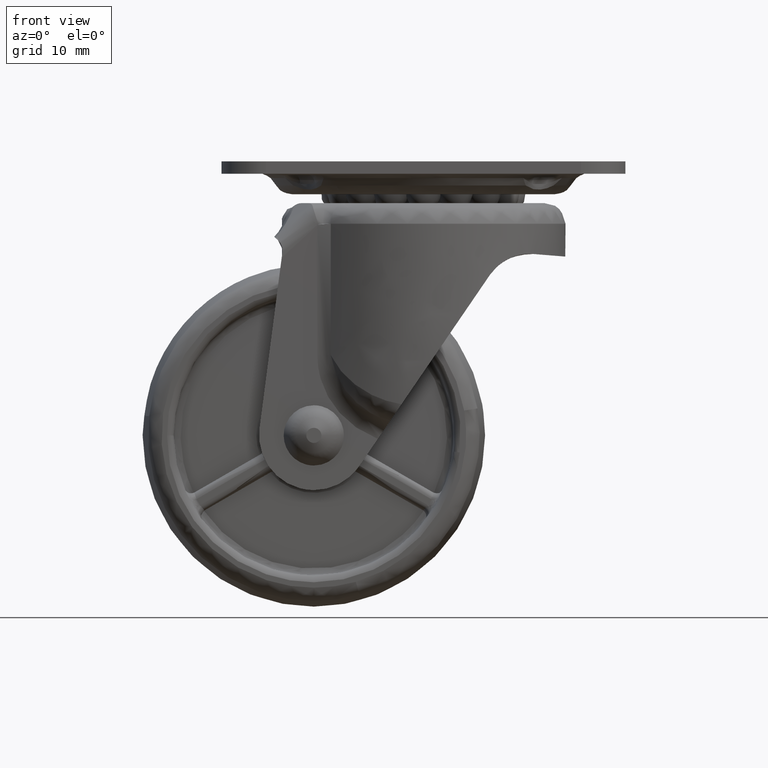
[diagram: clean part render]
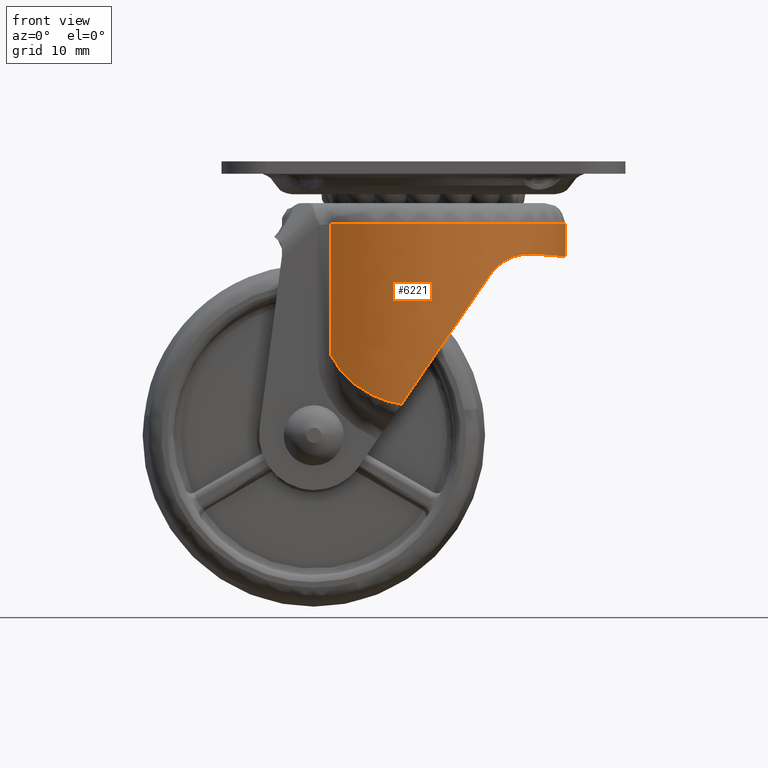
[diagram: same view with one face highlighted and labeled with its STEP entity id]
A machine part, front view. The second image highlights one B-rep face of the part: STEP entity #6221.
In plain terms, the highlighted face is a freeform B-spline surface patch.
Its self-contained STEP definition (entity closure, byte-faithful):
#2272=CARTESIAN_POINT('',(-13.536819851418221,-15.726315789473700,-9.099995000000000));
#2273=VERTEX_POINT('',#2272);
#2438=CARTESIAN_POINT('',(-13.536819851418221,15.726315789473700,-9.099995000000000));
#2439=VERTEX_POINT('',#2438);
#2473=CARTESIAN_POINT('',(-13.536819851418221,15.726315789473700,-9.099995000000000));
#2474=CARTESIAN_POINT('',(1.425380140302373,28.605403846727505,-9.099995000000000));
#2475=CARTESIAN_POINT('',(15.033137320313640,14.302701923363751,-9.099995000000000));
#2476=CARTESIAN_POINT('',(28.640894500324922,-6.938894E-015,-9.099995000000000));
#2477=CARTESIAN_POINT('',(15.033137320313640,-14.302701923363760,-9.099995000000000));
#2478=CARTESIAN_POINT('',(1.425380140302373,-28.605403846727505,-9.099995000000000));
#2479=CARTESIAN_POINT('',(-13.536819851418210,-15.726315789473700,-9.099995000000000));
#2487=(BOUNDED_CURVE()B_SPLINE_CURVE(2,(#2473,#2474,#2475,#2476,#2477,#2478,#2479),.UNSPECIFIED.,.F.,.U.)B_SPLINE_CURVE_WITH_KNOTS((3,2,2,3),(0.0,0.333333333333333,0.666666666666667,1.0),.UNSPECIFIED.)CURVE()GEOMETRIC_REPRESENTATION_ITEM()RATIONAL_B_SPLINE_CURVE((1.0,0.724488545557284,1.0,0.724488545557284,1.0,0.724488545557284,1.0))REPRESENTATION_ITEM(''));
#2488=EDGE_CURVE('',#2439,#2273,#2487,.T.);
#4585=CARTESIAN_POINT('',(-13.536819851418301,-15.726315789473650,-28.281603139059850));
#4586=VERTEX_POINT('',#4585);
#4600=CARTESIAN_POINT('',(-13.536819851418221,-15.726315789473700,-9.099995000000000));
#4601=CARTESIAN_POINT('',(-13.536819851418301,-15.726315789473650,-28.281603139059850));
#4602=QUASI_UNIFORM_CURVE('',1,(#4600,#4601),.UNSPECIFIED.,.F.,.U.);
#4603=EDGE_CURVE('',#2273,#4586,#4602,.T.);
#4860=CARTESIAN_POINT('',(-13.536819851410900,15.726315789479999,-28.281603139075049));
#4861=VERTEX_POINT('',#4860);
#4862=CARTESIAN_POINT('',(-13.536819851410900,15.726315789479999,-28.281603139075049));
#4863=CARTESIAN_POINT('',(-13.536819851418221,15.726315789473700,-9.099995000000000));
#4864=QUASI_UNIFORM_CURVE('',1,(#4862,#4863),.UNSPECIFIED.,.F.,.U.);
#4865=EDGE_CURVE('',#4861,#2439,#4864,.T.);
#5180=CARTESIAN_POINT('',(-3.206759390951151,20.500712041501050,-35.461347251662097));
#5181=VERTEX_POINT('',#5180);
#5209=CARTESIAN_POINT('',(-3.206759390951130,20.500712041501050,-35.461347251662097));
#5210=CARTESIAN_POINT('',(-3.492089954716481,20.456080105643029,-35.414903710843461));
#5211=CARTESIAN_POINT('',(-3.774726366782582,20.405770154518130,-35.361052037543907));
#5212=CARTESIAN_POINT('',(-4.194732096272557,20.322084079303419,-35.269323581220704));
#5213=CARTESIAN_POINT('',(-4.334075442403953,20.292817997393328,-35.236920814057108));
#5214=CARTESIAN_POINT('',(-4.611455579416584,20.231587917285371,-35.168471677936417));
#5215=CARTESIAN_POINT('',(-4.749638305119006,20.199587544063139,-35.132383742800087));
#5216=CARTESIAN_POINT('',(-5.435152964068215,20.033472687798501,-34.943437019937072));
#5217=CARTESIAN_POINT('',(-5.966265421165112,19.881149563466170,-34.765290711490273));
#5218=CARTESIAN_POINT('',(-6.996321945795561,19.542464283489970,-34.357088029015053));
#5219=CARTESIAN_POINT('',(-7.495258184683345,19.356078539276400,-34.127031620077823));
#5220=CARTESIAN_POINT('',(-8.099456526740335,19.104408907397520,-33.806461398963542));
#5221=CARTESIAN_POINT('',(-8.219436718064848,19.053087988800382,-33.740622464139520));
#5222=CARTESIAN_POINT('',(-8.456829331041437,18.948913940827300,-33.605938955808632));
#5223=CARTESIAN_POINT('',(-8.574182002396178,18.896090337159119,-33.537133662245999));
#5224=CARTESIAN_POINT('',(-8.922276511847709,18.735548831227302,-33.326325021009701));
#5225=CARTESIAN_POINT('',(-9.149058890763113,18.625759746194799,-33.179935321530692));
#5226=CARTESIAN_POINT('',(-9.592321878181490,18.401401188360168,-32.875293165864520));
#5227=CARTESIAN_POINT('',(-9.808802467537094,18.286830556551170,-32.717041538803919));
#5228=CARTESIAN_POINT('',(-10.125894397435180,18.111966543276971,-32.470485409699243));
#5229=CARTESIAN_POINT('',(-10.230348625788050,18.053157665363319,-32.386737582834932));
#5230=CARTESIAN_POINT('',(-10.435817027290691,17.935168180659470,-32.216878401479072));
#5231=CARTESIAN_POINT('',(-10.536947990821391,17.875924316332679,-32.130678753212649));
#5232=CARTESIAN_POINT('',(-11.034712793613149,17.578757167528519,-31.693263225525619));
#5233=CARTESIAN_POINT('',(-11.407797842806540,17.337924513956519,-31.322942393213729));
#5234=CARTESIAN_POINT('',(-12.105006851961150,16.858537516284429,-30.537581326240758));
#5235=CARTESIAN_POINT('',(-12.429163023810400,16.619908353952180,-30.122614515681519));
#5236=CARTESIAN_POINT('',(-12.802417964111781,16.330019242795672,-29.570585136858330));
#5237=CARTESIAN_POINT('',(-12.875461643192130,16.272471673752769,-29.458497868734899));
#5238=CARTESIAN_POINT('',(-13.018253658997160,16.158462753876218,-29.230753609450598));
#5239=CARTESIAN_POINT('',(-13.088106098742090,16.101914128107190,-29.114904793748110));
#5240=CARTESIAN_POINT('',(-13.291150638674250,15.935446465773611,-28.764151614121179));
#5241=CARTESIAN_POINT('',(-13.418219491944800,15.828404016748021,-28.525503038413749));
#5242=CARTESIAN_POINT('',(-13.536819851410881,15.726315789480010,-28.281603139075049));
#5243=B_SPLINE_CURVE_WITH_KNOTS('',3,(#5209,#5210,#5211,#5212,#5213,#5214,#5215,#5216,#5217,#5218,#5219,#5220,#5221,#5222,#5223,#5224,#5225,#5226,#5227,#5228,#5229,#5230,#5231,#5232,#5233,#5234,#5235,#5236,#5237,#5238,#5239,#5240,#5241,#5242),.UNSPECIFIED.,.F.,.U.,(4,2,2,2,2,2,2,2,2,2,2,2,2,2,2,2,4),(0.0,0.062500000000000,0.093750000000000,0.125000000000000,0.250000000000001,0.375000000000002,0.406250000000002,0.437500000000003,0.500000000000003,0.562500000000003,0.593750000000003,0.625000000000003,0.750000000000003,0.875000000000002,0.906250000000001,0.937500000000001,1.0),.UNSPECIFIED.);
#5244=EDGE_CURVE('',#5181,#4861,#5243,.T.);
#5329=CARTESIAN_POINT('',(-3.206759390951140,-20.500712041501050,-35.461347251662097));
#5330=VERTEX_POINT('',#5329);
#5331=CARTESIAN_POINT('',(-13.536819851418279,-15.726315789473640,-28.281603139059840));
#5332=CARTESIAN_POINT('',(-13.300257100085091,-15.929943097434530,-28.768090966731009));
#5333=CARTESIAN_POINT('',(-13.031376501705720,-16.152086066443651,-29.231406982724231));
#5334=CARTESIAN_POINT('',(-12.656611770752720,-16.443287029929088,-29.786361749585360));
#5335=CARTESIAN_POINT('',(-12.579588082465561,-16.502307021498609,-29.896294878620331));
#5336=CARTESIAN_POINT('',(-12.422587321116840,-16.620815190764230,-30.112519079262700));
#5337=CARTESIAN_POINT('',(-12.342548204782990,-16.680354374114920,-30.218915312536492));
#5338=CARTESIAN_POINT('',(-12.097896234568140,-16.859545653172528,-30.533216774759051));
#5339=CARTESIAN_POINT('',(-11.928755828672680,-16.979764652835019,-30.736246155196291));
#5340=CARTESIAN_POINT('',(-11.403583414587940,-17.340740423914049,-31.327427859009969));
#5341=CARTESIAN_POINT('',(-11.029888559731830,-17.581761770332999,-31.697796312422600));
#5342=CARTESIAN_POINT('',(-10.433601985541319,-17.937558968670182,-32.221345854685083));
#5343=CARTESIAN_POINT('',(-10.228859311666060,-18.055218872170101,-32.390494894815660));
#5344=CARTESIAN_POINT('',(-9.912525885371837,-18.229614049858380,-32.636355272826009));
#5345=CARTESIAN_POINT('',(-9.805543463467112,-18.287397101554440,-32.716996549346092));
#5346=CARTESIAN_POINT('',(-9.588444269069607,-18.402155087457292,-32.875666852485139));
#5347=CARTESIAN_POINT('',(-9.478437369398547,-18.459068079918438,-32.953608279078722));
#5348=CARTESIAN_POINT('',(-8.923534894061733,-18.739811485424820,-33.334746240353603));
#5349=CARTESIAN_POINT('',(-8.461904350230114,-18.953332785671279,-33.613988347665043));
#5350=CARTESIAN_POINT('',(-7.502378812601484,-19.353215781080760,-34.123421071153679));
#5351=CARTESIAN_POINT('',(-7.004489013838262,-19.539605583314049,-34.353599736066563));
#5352=CARTESIAN_POINT('',(-6.357902964071161,-19.752420217355230,-34.610149213955872));
#5353=CARTESIAN_POINT('',(-6.227370190328540,-19.793972967415829,-34.659893145314101));
#5354=CARTESIAN_POINT('',(-5.963815871148362,-19.874969322673689,-34.756206861645033));
#5355=CARTESIAN_POINT('',(-5.830616495192141,-19.914462033192351,-34.802833830780173));
#5356=CARTESIAN_POINT('',(-5.428957524288258,-20.029140454381409,-34.937292373772998));
#5357=CARTESIAN_POINT('',(-5.158267879635036,-20.100598157309740,-35.019794981879102));
#5358=CARTESIAN_POINT('',(-4.337336889648824,-20.299436048929142,-35.245943283115729));
#5359=CARTESIAN_POINT('',(-3.778264847909741,-20.411316098210310,-35.368322737680643));
#5360=CARTESIAN_POINT('',(-3.206759390951136,-20.500712041501050,-35.461347251662097));
#5361=B_SPLINE_CURVE_WITH_KNOTS('',3,(#5331,#5332,#5333,#5334,#5335,#5336,#5337,#5338,#5339,#5340,#5341,#5342,#5343,#5344,#5345,#5346,#5347,#5348,#5349,#5350,#5351,#5352,#5353,#5354,#5355,#5356,#5357,#5358,#5359,#5360),.UNSPECIFIED.,.F.,.U.,(4,2,2,2,2,2,2,2,2,2,2,2,2,2,4),(0.0,0.124999999999998,0.156249999999998,0.187499999999998,0.249999999999997,0.374999999999996,0.437499999999995,0.468749999999995,0.499999999999995,0.624999999999995,0.749999999999996,0.781249999999997,0.812499999999997,0.874999999999998,1.0),.UNSPECIFIED.);
#5362=EDGE_CURVE('',#4586,#5330,#5361,.T.);
#5574=CARTESIAN_POINT('',(9.734072073091880,18.325128672832101,-16.530855647014100));
#5575=VERTEX_POINT('',#5574);
#5576=CARTESIAN_POINT('',(-3.206759390951151,20.500712041501050,-35.461347251662097));
#5577=CARTESIAN_POINT('',(3.626222317645904,21.569539710407582,-25.465721914239129));
#5578=CARTESIAN_POINT('',(9.734072073091880,18.325128672832101,-16.530855647014100));
#5586=(BOUNDED_CURVE()B_SPLINE_CURVE(2,(#5576,#5577,#5578),.UNSPECIFIED.,.F.,.U.)CURVE()GEOMETRIC_REPRESENTATION_ITEM()QUASI_UNIFORM_CURVE()RATIONAL_B_SPLINE_CURVE((1.0,0.948691474317042,1.0))REPRESENTATION_ITEM(''));
#5587=EDGE_CURVE('',#5181,#5575,#5586,.T.);
#5626=CARTESIAN_POINT('',(9.734072073091880,-18.325128672832101,-16.530855647014100));
#5627=VERTEX_POINT('',#5626);
#5633=CARTESIAN_POINT('',(9.734072073091880,-18.325128672832101,-16.530855647014100));
#5634=CARTESIAN_POINT('',(3.626222317645991,-21.569539710407568,-25.465721914239005));
#5635=CARTESIAN_POINT('',(-3.206759390951131,-20.500712041501060,-35.461347251662097));
#5643=(BOUNDED_CURVE()B_SPLINE_CURVE(2,(#5633,#5634,#5635),.UNSPECIFIED.,.F.,.U.)CURVE()GEOMETRIC_REPRESENTATION_ITEM()QUASI_UNIFORM_CURVE()RATIONAL_B_SPLINE_CURVE((1.0,0.948691474317038,1.0))REPRESENTATION_ITEM(''));
#5644=EDGE_CURVE('',#5627,#5330,#5643,.T.);
#5774=CARTESIAN_POINT('',(16.033527717364048,13.171502927604401,-13.520357887976999));
#5775=VERTEX_POINT('',#5774);
#5776=CARTESIAN_POINT('',(16.033527717364048,-13.171502927604401,-13.520357887976999));
#5777=VERTEX_POINT('',#5776);
#5778=CARTESIAN_POINT('',(16.033527717364048,13.171502927604401,-13.520357887976999));
#5779=CARTESIAN_POINT('',(26.853884432326222,5.204170E-015,-14.391318596259799));
#5780=CARTESIAN_POINT('',(16.033527717364048,-13.171502927604401,-13.520357887976999));
#5788=(BOUNDED_CURVE()B_SPLINE_CURVE(2,(#5778,#5779,#5780),.UNSPECIFIED.,.F.,.U.)CURVE()GEOMETRIC_REPRESENTATION_ITEM()QUASI_UNIFORM_CURVE()RATIONAL_B_SPLINE_CURVE((1.0,0.772700130302993,1.0))REPRESENTATION_ITEM(''));
#5789=EDGE_CURVE('',#5775,#5777,#5788,.T.);
#5866=CARTESIAN_POINT('',(16.033527717364048,13.171502927604401,-13.520357887976999));
#5867=CARTESIAN_POINT('',(15.987857882901510,13.227095985798019,-13.516867103886289));
#5868=CARTESIAN_POINT('',(15.941876158710460,13.282480312545051,-13.513802558687090));
#5869=CARTESIAN_POINT('',(15.578001736977541,13.716145755447650,-13.493201533891799));
#5870=CARTESIAN_POINT('',(15.248530415912629,14.081362364114860,-13.496162132248401));
#5871=CARTESIAN_POINT('',(14.567123214585910,14.785173772887021,-13.554014085429930));
#5872=CARTESIAN_POINT('',(14.215179644198150,15.123770059139771,-13.608809180799410));
#5873=CARTESIAN_POINT('',(13.761891361212390,15.530218749139131,-13.718573937372041));
#5874=CARTESIAN_POINT('',(13.670382727867990,15.610824954691360,-13.742659581283609));
#5875=CARTESIAN_POINT('',(13.487033137189369,15.769500812617220,-13.794993479529460));
#5876=CARTESIAN_POINT('',(13.395273760956840,15.847506699932790,-13.823209356555070));
#5877=CARTESIAN_POINT('',(13.119879856712901,16.077577667191608,-13.914221818293811));
#5878=CARTESIAN_POINT('',(12.936126478540890,16.225697721614878,-13.983373728836661));
#5879=CARTESIAN_POINT('',(12.385589422335331,16.654613773062781,-14.218301466583640));
#5880=CARTESIAN_POINT('',(12.019433671432161,16.920001486412680,-14.411281689329650));
#5881=CARTESIAN_POINT('',(11.612999641737879,17.196038191106940,-14.678127887334730));
#5882=CARTESIAN_POINT('',(11.567865974818231,17.226429914868589,-14.708512064890620));
#5883=CARTESIAN_POINT('',(11.478281580145991,17.286250672690670,-14.770358578678040));
#5884=CARTESIAN_POINT('',(11.344780336376481,17.374640755118449,-14.864838564688361));
#5885=CARTESIAN_POINT('',(11.213971354066810,17.459087126492339,-14.964467975061940));
#5886=CARTESIAN_POINT('',(10.956133964146529,17.622914359227352,-15.170669007832210));
#5887=CARTESIAN_POINT('',(10.789275582953371,17.725385252167278,-15.317380834692081));
#5888=CARTESIAN_POINT('',(10.466796895681950,17.917698260808539,-15.629955886260991));
#5889=CARTESIAN_POINT('',(10.311172606348920,18.007541124786911,-15.795814601972481));
#5890=CARTESIAN_POINT('',(10.087255219256599,18.133314996947661,-16.059781247286161));
#5891=CARTESIAN_POINT('',(10.014205203273400,18.173739401207790,-16.150303651019168));
#5892=CARTESIAN_POINT('',(9.907179994656060,18.232167659156811,-16.290030867813119));
#5893=CARTESIAN_POINT('',(9.871930127124442,18.251275552648611,-16.337264194225430));
#5894=CARTESIAN_POINT('',(9.802311600998339,18.288760226470789,-16.433074132012550));
#5895=CARTESIAN_POINT('',(9.767883564002407,18.307168450025870,-16.481738054237990));
#5896=CARTESIAN_POINT('',(9.734072073091880,18.325128672832101,-16.530855647014100));
#5897=B_SPLINE_CURVE_WITH_KNOTS('',3,(#5866,#5867,#5868,#5869,#5870,#5871,#5872,#5873,#5874,#5875,#5876,#5877,#5878,#5879,#5880,#5881,#5882,#5883,#5884,#5885,#5886,#5887,#5888,#5889,#5890,#5891,#5892,#5893,#5894,#5895,#5896),.UNSPECIFIED.,.F.,.U.,(4,2,2,2,2,2,2,2,2,1,2,2,2,2,2,4),(0.807955486070889,0.812499999999999,0.843750000000000,0.875000000000000,0.882812500000000,0.890625000000001,0.906250000000001,0.937500000000001,0.941406250000001,0.945312500000001,0.953125000000001,0.968750000000000,0.984375000000000,0.992187500000000,0.996093750000000,1.0),.UNSPECIFIED.);
#5898=EDGE_CURVE('',#5775,#5575,#5897,.T.);
#5952=CARTESIAN_POINT('',(9.734072073091880,-18.325128672832101,-16.530855647014100));
#5953=CARTESIAN_POINT('',(9.801116516721621,-18.289515509696731,-16.433460943033559));
#5954=CARTESIAN_POINT('',(9.870531820560197,-18.252172027098968,-16.337903047941829));
#5955=CARTESIAN_POINT('',(10.014046689764561,-18.173828697938969,-16.150485101428970));
#5956=CARTESIAN_POINT('',(10.087916693644040,-18.132950388545151,-16.058950259942812));
#5957=CARTESIAN_POINT('',(10.313771800468450,-18.006066532229980,-15.792855254447209));
#5958=CARTESIAN_POINT('',(10.470678298398060,-17.915445500983150,-15.625878926503869));
#5959=CARTESIAN_POINT('',(10.795629920588070,-17.721531052413340,-15.311547960066029));
#5960=CARTESIAN_POINT('',(10.963679327995161,-17.618236739579981,-15.164198360130049));
#5961=CARTESIAN_POINT('',(11.223192921154720,-17.453164072082480,-14.957330028832770));
#5962=CARTESIAN_POINT('',(11.310939351133371,-17.396449645745029,-14.890736389919430));
#5963=CARTESIAN_POINT('',(11.488782569655360,-17.279516269970092,-14.762212881810230));
#5964=CARTESIAN_POINT('',(11.578545203262481,-17.219512934589289,-14.700535082222610));
#5965=CARTESIAN_POINT('',(12.028688698629029,-16.913390620836449,-14.406136238003340));
#5966=CARTESIAN_POINT('',(12.395365591285030,-16.647419052452211,-14.213342713761699));
#5967=CARTESIAN_POINT('',(12.856743748258319,-16.287427864165849,-14.017464757121139));
#5968=CARTESIAN_POINT('',(12.949177165986880,-16.214050452962439,-13.980560849325579));
#5969=CARTESIAN_POINT('',(13.134251228247569,-16.064497005534371,-13.911144671031190));
#5970=CARTESIAN_POINT('',(13.227051365242611,-15.988183519017010,-13.878586394629229));
#5971=CARTESIAN_POINT('',(13.503446897186651,-15.756812114318850,-13.787966922735309));
#5972=CARTESIAN_POINT('',(13.685585968637939,-15.598898908818420,-13.736707384917800));
#5973=CARTESIAN_POINT('',(14.225189373549579,-15.114239879840380,-13.607124670293810));
#5974=CARTESIAN_POINT('',(14.575832409751660,-14.776588642507420,-13.552863605383740));
#5975=CARTESIAN_POINT('',(15.086677400490620,-14.248319590701749,-13.510125177064779));
#5976=CARTESIAN_POINT('',(15.254441786292810,-14.068594216798230,-13.502360573941370));
#5977=CARTESIAN_POINT('',(15.584705824406891,-13.701834836988860,-13.498566143372850));
#5978=CARTESIAN_POINT('',(15.747544519035401,-13.514364590635440,-13.502582907745200));
#5979=CARTESIAN_POINT('',(15.948714510490660,-13.274237882137760,-13.514266600697450));
#5980=CARTESIAN_POINT('',(15.991269953139501,-13.222941394649080,-13.517130993018450));
#5981=CARTESIAN_POINT('',(16.033527717364048,-13.171502927604401,-13.520357887976999));
#5982=B_SPLINE_CURVE_WITH_KNOTS('',3,(#5952,#5953,#5954,#5955,#5956,#5957,#5958,#5959,#5960,#5961,#5962,#5963,#5964,#5965,#5966,#5967,#5968,#5969,#5970,#5971,#5972,#5973,#5974,#5975,#5976,#5977,#5978,#5979,#5980,#5981),.UNSPECIFIED.,.F.,.U.,(4,2,2,2,2,2,2,2,2,2,2,2,2,2,4),(0.0,0.007812500000000,0.015625000000000,0.031249999999999,0.046874999999999,0.054687499999999,0.062499999999999,0.093749999999998,0.101562499999998,0.109374999999998,0.124999999999998,0.156249999999998,0.171874999999998,0.187499999999998,0.191729696539855),.UNSPECIFIED.);
#5983=EDGE_CURVE('',#5627,#5777,#5982,.T.);
#6187=CARTESIAN_POINT('',(-14.209908058676950,15.120880032721230,-36.120381057953651));
#6188=CARTESIAN_POINT('',(-14.209908058676950,15.120880032721230,-8.424485348551158));
#6189=CARTESIAN_POINT('',(0.649339365378885,29.084917791108651,-36.120381057953651));
#6190=CARTESIAN_POINT('',(0.649339365378885,29.084917791108651,-8.424485348551158));
#6191=CARTESIAN_POINT('',(14.870579958576149,14.471639564872840,-36.120381057953651));
#6192=CARTESIAN_POINT('',(14.870579958576149,14.471639564872840,-8.424485348551158));
#6193=CARTESIAN_POINT('',(29.091820551773424,-0.141638661362966,-36.120381057953651));
#6194=CARTESIAN_POINT('',(29.091820551773424,-0.141638661362966,-8.424485348551158));
#6195=CARTESIAN_POINT('',(14.728962869467351,-14.615750161721150,-36.120381057953651));
#6196=CARTESIAN_POINT('',(14.728962869467351,-14.615750161721150,-8.424485348551158));
#6197=CARTESIAN_POINT('',(0.366105187161285,-29.089861662079322,-36.120381057953651));
#6198=CARTESIAN_POINT('',(0.366105187161285,-29.089861662079322,-8.424485348551158));
#6199=CARTESIAN_POINT('',(-14.356468265780929,-14.981799589289160,-36.120381057953651));
#6200=CARTESIAN_POINT('',(-14.356468265780929,-14.981799589289160,-8.424485348551158));
#6208=(BOUNDED_SURFACE()B_SPLINE_SURFACE(1,2,((#6187,#6189,#6191,#6193,#6195,#6197,#6199),(#6188,#6190,#6192,#6194,#6196,#6198,#6200)),.UNSPECIFIED.,.F.,.F.,.U.)B_SPLINE_SURFACE_WITH_KNOTS((2,2),(3,2,2,3),(0.0,27.695895709402489),(0.0,33.956196518499887,67.912393036999774,101.868589555499700),.UNSPECIFIED.)GEOMETRIC_REPRESENTATION_ITEM()RATIONAL_B_SPLINE_SURFACE(((1.0,0.713250449154182,1.0,0.713250449154182,1.0,0.713250449154182,1.0),(1.0,0.713250449154182,1.0,0.713250449154182,1.0,0.713250449154182,1.0)))REPRESENTATION_ITEM('')SURFACE());
#6209=ORIENTED_EDGE('',*,*,#4865,.T.);
#6210=ORIENTED_EDGE('',*,*,#2488,.T.);
#6211=ORIENTED_EDGE('',*,*,#4603,.T.);
#6212=ORIENTED_EDGE('',*,*,#5362,.T.);
#6213=ORIENTED_EDGE('',*,*,#5644,.F.);
#6214=ORIENTED_EDGE('',*,*,#5983,.T.);
#6215=ORIENTED_EDGE('',*,*,#5789,.F.);
#6216=ORIENTED_EDGE('',*,*,#5898,.T.);
#6217=ORIENTED_EDGE('',*,*,#5587,.F.);
#6218=ORIENTED_EDGE('',*,*,#5244,.T.);
#6219=EDGE_LOOP('',(#6209,#6210,#6211,#6212,#6213,#6214,#6215,#6216,#6217,#6218));
#6220=FACE_OUTER_BOUND('',#6219,.T.);
#6221=ADVANCED_FACE('',(#6220),#6208,.T.);